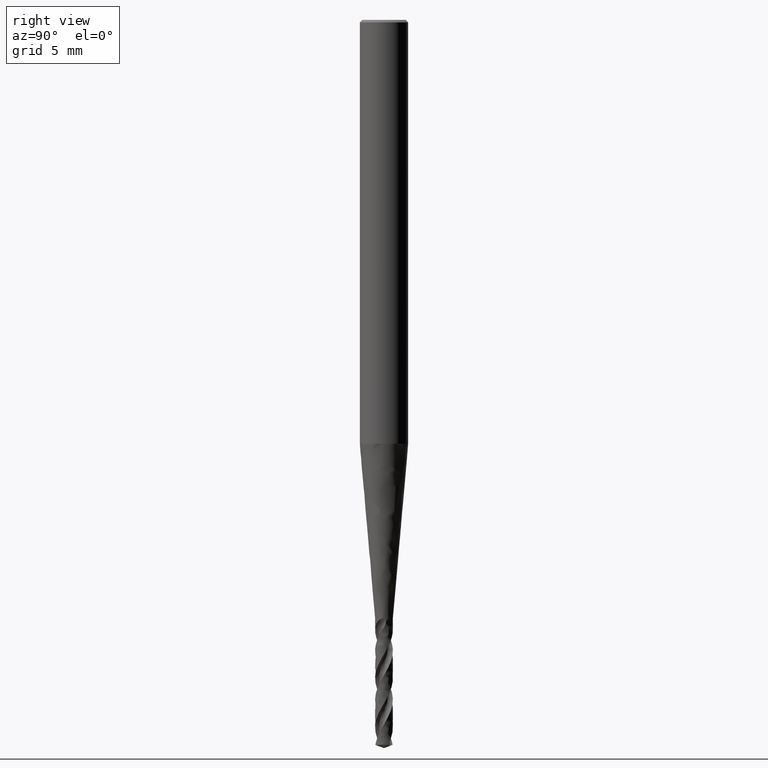
[diagram: clean part render]
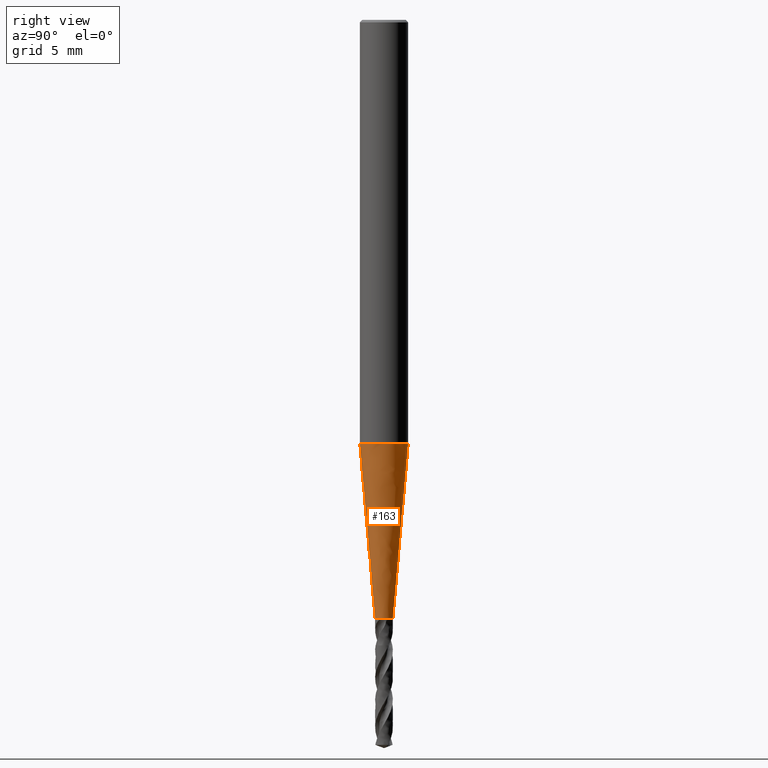
[diagram: same view with one face highlighted and labeled with its STEP entity id]
A machine part, right view. The second image highlights one B-rep face of the part: STEP entity #163.
In plain terms, the highlighted face is a freeform B-spline surface patch.
Its self-contained STEP definition (entity closure, byte-faithful):
#129 = VERTEX_POINT('', #130);
#130 = CARTESIAN_POINT('', (-1.5, 1.69558472575947E-15, -26.191));
#138 = EDGE_CURVE('', #129, #129, #139, .T.);
#139 = CIRCLE('', #140, 1.5);
#140 = AXIS2_PLACEMENT_3D('', #141, #142, #143);
#141 = CARTESIAN_POINT('', (9.82005211692418E-32, 1.60373621582342E-15, -26.191));
#142 = DIRECTION('', (3.74939945665464E-33, 6.12323399573677E-17, -1.));
#143 = DIRECTION('', (-1., 6.12323399573677E-17, 0.));
#163 = ADVANCED_FACE('', (#164), #277, .T.);
#164 = FACE_OUTER_BOUND('', #165, .T.);
#165 = EDGE_LOOP('', (#166, #186, #195, #210, #218, #230, #236, #237, #238, #247, #256, #271));
#166 = ORIENTED_EDGE('', *, *, #167, .T.);
#167 = EDGE_CURVE('', #168, #170, #172, .T.);
#168 = VERTEX_POINT('', #169);
#169 = CARTESIAN_POINT('', (0.54899747374779, -0.0551220240323969, -36.98));
#170 = VERTEX_POINT('', #171);
#171 = CARTESIAN_POINT('', (0.549345548819071, 0.0268229005268516, -37.));
#172 = B_SPLINE_CURVE_WITH_KNOTS('', 3, (#173, #174, #175, #176, #177, #178, #179, #180, #181, #182, #183, #184, #185), .UNSPECIFIED., .F., .U., (4, 3, 3, 3, 4), (0., 0.0388363804196075, 0.0560405096136049, 0.0733159222666774, 0.0853535307797649), .UNSPECIFIED.);
#173 = CARTESIAN_POINT('', (0.548997473748075, -0.0551220240295612, -36.98));
#174 = CARTESIAN_POINT('', (0.550289571932479, -0.042241215179991, -36.9800135608124));
#175 = CARTESIAN_POINT('', (0.551027504518866, -0.0292082516672607, -36.9811639795532));
#176 = CARTESIAN_POINT('', (0.551177051318992, -0.0165322511800773, -36.9837872572046));
#177 = CARTESIAN_POINT('', (0.551243299059954, -0.0109169093874478, -36.9849493430411));
#178 = CARTESIAN_POINT('', (0.551195948494272, -0.00535008337504009, -36.9864041641578));
#179 = CARTESIAN_POINT('', (0.551039648641703, 0.000103465281326144, -36.988170876673));
#180 = CARTESIAN_POINT('', (0.550882701177505, 0.00557961013004108, -36.9899449093716));
#181 = CARTESIAN_POINT('', (0.550615197099669, 0.0109613421570308, -36.9920406317171));
#182 = CARTESIAN_POINT('', (0.5502491603665, 0.0161735280283985, -36.9944611941472));
#183 = CARTESIAN_POINT('', (0.549994103831308, 0.0198054096092886, -36.996147856197));
#184 = CARTESIAN_POINT('', (0.549690789839166, 0.0233638549880452, -36.9979959393417));
#185 = CARTESIAN_POINT('', (0.549345548819071, 0.0268229005268547, -37.));
#186 = ORIENTED_EDGE('', *, *, #187, .F.);
#187 = EDGE_CURVE('', #188, #170, #190, .T.);
#188 = VERTEX_POINT('', #189);
#189 = CARTESIAN_POINT('', (-0.52683410726394, 0.157942468713795, -37.));
#190 = CIRCLE('', #191, 0.549999999999995);
#191 = AXIS2_PLACEMENT_3D('', #192, #193, #194);
#192 = CARTESIAN_POINT('', (1.38727779896222E-31, 2.2655965784226E-15, -37.));
#193 = DIRECTION('', (3.74939945665464E-33, 6.12323399573677E-17, -1.));
#194 = DIRECTION('', (-1., 6.12323399573677E-17, 0.));
#195 = ORIENTED_EDGE('', *, *, #196, .F.);
#196 = EDGE_CURVE('', #197, #188, #199, .T.);
#197 = VERTEX_POINT('', #198);
#198 = CARTESIAN_POINT('', (-0.548950564384476, 0.0555872429326122, -36.98));
#199 = B_SPLINE_CURVE_WITH_KNOTS('', 3, (#200, #201, #202, #203, #204, #205, #206, #207, #208, #209), .UNSPECIFIED., .F., .U., (4, 3, 3, 4), (0., 0.0393249790276596, 0.0783545944690313, 0.107218241043618), .UNSPECIFIED.);
#200 = CARTESIAN_POINT('', (-0.548950564383469, 0.0555872429425792, -36.98));
#201 = CARTESIAN_POINT('', (-0.547628757905823, 0.0686287481869181, -36.9800137149702));
#202 = CARTESIAN_POINT('', (-0.54573244939805, 0.0816479186416522, -36.9811772849815));
#203 = CARTESIAN_POINT('', (-0.543342356414838, 0.0943803582668343, -36.9831774490311));
#204 = CARTESIAN_POINT('', (-0.540970215035227, 0.107017166587871, -36.9851625901707));
#205 = CARTESIAN_POINT('', (-0.538099398733137, 0.11945430510406, -36.9879828448495));
#206 = CARTESIAN_POINT('', (-0.53480962060516, 0.131563969498041, -36.9914165240344));
#207 = CARTESIAN_POINT('', (-0.532376724658814, 0.140519452898326, -36.9939558394062));
#208 = CARTESIAN_POINT('', (-0.529708534634976, 0.14932201774587, -36.9968387849529));
#209 = CARTESIAN_POINT('', (-0.526834107263965, 0.157942468713801, -37.));
#210 = ORIENTED_EDGE('', *, *, #211, .F.);
#211 = EDGE_CURVE('', #212, #197, #214, .T.);
#212 = VERTEX_POINT('', #213);
#213 = CARTESIAN_POINT('', (-0.548997473747743, 0.0551220240328736, -36.98));
#214 = LINE('', #215, #216);
#215 = CARTESIAN_POINT('', (-0.548997473747743, 0.0551220240328736, -36.98));
#216 = VECTOR('', #217, 0.000467577921886833);
#217 = DIRECTION('', (4.69093632665674E-5, 0.000465218899738537, 0.));
#218 = ORIENTED_EDGE('', *, *, #219, .T.);
#219 = EDGE_CURVE('', #212, #220, #222, .T.);
#220 = VERTEX_POINT('', #221);
#221 = CARTESIAN_POINT('', (-0.551042600604659, 2.29861183152198E-15, -36.9881374000676));
#222 = B_SPLINE_CURVE_WITH_KNOTS('', 3, (#223, #224, #225, #226, #227, #228, #229), .UNSPECIFIED., .F., .U., (4, 3, 4), (0., 0.0388363804196066, 0.055931910507833), .UNSPECIFIED.);
#223 = CARTESIAN_POINT('', (-0.548997473748095, 0.0551220240293687, -36.98));
#224 = CARTESIAN_POINT('', (-0.550289571932493, 0.0422412151797982, -36.9800135608125));
#225 = CARTESIAN_POINT('', (-0.551027504518874, 0.0292082516670683, -36.9811639795532));
#226 = CARTESIAN_POINT('', (-0.551177051318995, 0.0165322511798882, -36.9837872572047));
#227 = CARTESIAN_POINT('', (-0.551242880878635, 0.0109523555926682, -36.9849420075067));
#228 = CARTESIAN_POINT('', (-0.55119655028134, 0.00542043652867239, -36.9863857768516));
#229 = CARTESIAN_POINT('', (-0.551042600604659, 2.23616178638682E-15, -36.9881374000676));
#230 = ORIENTED_EDGE('', *, *, #231, .F.);
#231 = EDGE_CURVE('', #129, #220, #232, .T.);
#232 = LINE('', #233, #234);
#233 = CARTESIAN_POINT('', (-1.5, 1.69558472575947E-15, -26.191));
#234 = VECTOR('', #235, 10.8387589779368);
#235 = DIRECTION('', (0.948957399395341, 6.03027105762514E-16, -10.7971374000676));
#236 = ORIENTED_EDGE('', *, *, #138, .T.);
#237 = ORIENTED_EDGE('', *, *, #231, .T.);
#238 = ORIENTED_EDGE('', *, *, #239, .F.);
#239 = EDGE_CURVE('', #240, #220, #242, .T.);
#240 = VERTEX_POINT('', #241);
#241 = CARTESIAN_POINT('', (-0.549345548819071, -0.0268229005268515, -37.));
#242 = B_SPLINE_CURVE_WITH_KNOTS('', 3, (#243, #244, #245, #246), .UNSPECIFIED., .F., .U., (4, 4), (0., 0.0293780403463576), .UNSPECIFIED.);
#243 = CARTESIAN_POINT('', (-0.549345548819072, -0.0268229005268512, -37.));
#244 = CARTESIAN_POINT('', (-0.550188116892831, -0.0183810261056527, -36.9951090472154));
#245 = CARTESIAN_POINT('', (-0.550778043741579, -0.00931482102118455, -36.9911475002077));
#246 = CARTESIAN_POINT('', (-0.551042600604659, 2.23616178638682E-15, -36.9881374000676));
#247 = ORIENTED_EDGE('', *, *, #248, .F.);
#248 = EDGE_CURVE('', #249, #240, #251, .T.);
#249 = VERTEX_POINT('', #250);
#250 = CARTESIAN_POINT('', (0.52683410726394, -0.157942468713792, -37.));
#251 = CIRCLE('', #252, 0.549999999999995);
#252 = AXIS2_PLACEMENT_3D('', #253, #254, #255);
#253 = CARTESIAN_POINT('', (1.38727779896222E-31, 2.2655965784226E-15, -37.));
#254 = DIRECTION('', (3.74939945665464E-33, 6.12323399573677E-17, -1.));
#255 = DIRECTION('', (-1., 6.12323399573677E-17, 0.));
#256 = ORIENTED_EDGE('', *, *, #257, .F.);
#257 = EDGE_CURVE('', #258, #249, #260, .T.);
#258 = VERTEX_POINT('', #259);
#259 = CARTESIAN_POINT('', (0.548950564384428, -0.05558724293308, -36.98));
#260 = B_SPLINE_CURVE_WITH_KNOTS('', 3, (#261, #262, #263, #264, #265, #266, #267, #268, #269, #270), .UNSPECIFIED., .F., .U., (4, 3, 3, 4), (0., 0.0393249790276628, 0.0783545944690366, 0.107218241043977), .UNSPECIFIED.);
#261 = CARTESIAN_POINT('', (0.548950564383505, -0.0555872429422228, -36.98));
#262 = CARTESIAN_POINT('', (0.547628757905869, -0.0686287481865638, -36.9800137149702));
#263 = CARTESIAN_POINT('', (0.545732449398105, -0.0816479186413024, -36.9811772849814));
#264 = CARTESIAN_POINT('', (0.543342356414902, -0.0943803582664896, -36.9831774490311));
#265 = CARTESIAN_POINT('', (0.5409702150353, -0.107017166587531, -36.9851625901706));
#266 = CARTESIAN_POINT('', (0.538099398733218, -0.119454305103726, -36.9879828448494));
#267 = CARTESIAN_POINT('', (0.534809620605248, -0.131563969497713, -36.9914165240344));
#268 = CARTESIAN_POINT('', (0.532376724658878, -0.140519452898111, -36.9939558394061));
#269 = CARTESIAN_POINT('', (0.529708534635009, -0.149322017745766, -36.9968387849528));
#270 = CARTESIAN_POINT('', (0.526834107263963, -0.157942468713802, -37.));
#271 = ORIENTED_EDGE('', *, *, #272, .F.);
#272 = EDGE_CURVE('', #168, #258, #273, .T.);
#273 = LINE('', #274, #275);
#274 = CARTESIAN_POINT('', (0.54899747374779, -0.0551220240323968, -36.98));
#275 = VECTOR('', #276, 0.000467577922836271);
#276 = DIRECTION('', (-4.69093633618245E-5, -0.000465218900683184, 0.));
#277 = (
   BOUNDED_SURFACE ()
   B_SPLINE_SURFACE (2, 1, ((#278, #279), (#280, #281), (#282, #283), (#284, #285), (#286, #287), (#288, #289), (#290, #291), (#292, #293), (#294, #295)), .UNSPECIFIED., .T., .F., .U.)
   B_SPLINE_SURFACE_WITH_KNOTS ((3, 2, 2, 2, 3), (2, 2), (0., 0.25, 0.5, 0.75, 1.), (0., 1.), .UNSPECIFIED.)
   GEOMETRIC_REPRESENTATION_ITEM ()
   RATIONAL_B_SPLINE_SURFACE (((1., 1.), (0.707106781186548, 0.707106781186548), (1., 1.), (0.707106781186548, 0.707106781186548), (1., 1.), (0.707106781186548, 0.707106781186548), (1., 1.), (0.707106781186548, 0.707106781186548), (1., 1.)))
   REPRESENTATION_ITEM ('')
   SURFACE ()
);
#278 = CARTESIAN_POINT('', (-1.5, 1.69558472575947E-15, -26.191));
#279 = CARTESIAN_POINT('', (-0.55, 2.29927436539916E-15, -37.));
#280 = CARTESIAN_POINT('', (-1.5, 1.5, -26.191));
#281 = CARTESIAN_POINT('', (-0.55, 0.550000000000002, -37.));
#282 = CARTESIAN_POINT('', (9.86076131526265E-32, 1.5, -26.191));
#283 = CARTESIAN_POINT('', (1.35585468084861E-31, 0.550000000000002, -37.));
#284 = CARTESIAN_POINT('', (1.5, 1.5, -26.191));
#285 = CARTESIAN_POINT('', (0.55, 0.550000000000002, -37.));
#286 = CARTESIAN_POINT('', (1.5, 1.69558472575947E-15, -26.191));
#287 = CARTESIAN_POINT('', (0.55, 2.29927436539916E-15, -37.));
#288 = CARTESIAN_POINT('', (1.5, -1.5, -26.191));
#289 = CARTESIAN_POINT('', (0.55, -0.549999999999998, -37.));
#290 = CARTESIAN_POINT('', (1.83697019872103E-16, -1.5, -26.191));
#291 = CARTESIAN_POINT('', (6.73555739531045E-17, -0.549999999999998, -37.));
#292 = CARTESIAN_POINT('', (-1.5, -1.5, -26.191));
#293 = CARTESIAN_POINT('', (-0.55, -0.549999999999998, -37.));
#294 = CARTESIAN_POINT('', (-1.5, 1.69558472575947E-15, -26.191));
#295 = CARTESIAN_POINT('', (-0.55, 2.29927436539916E-15, -37.));